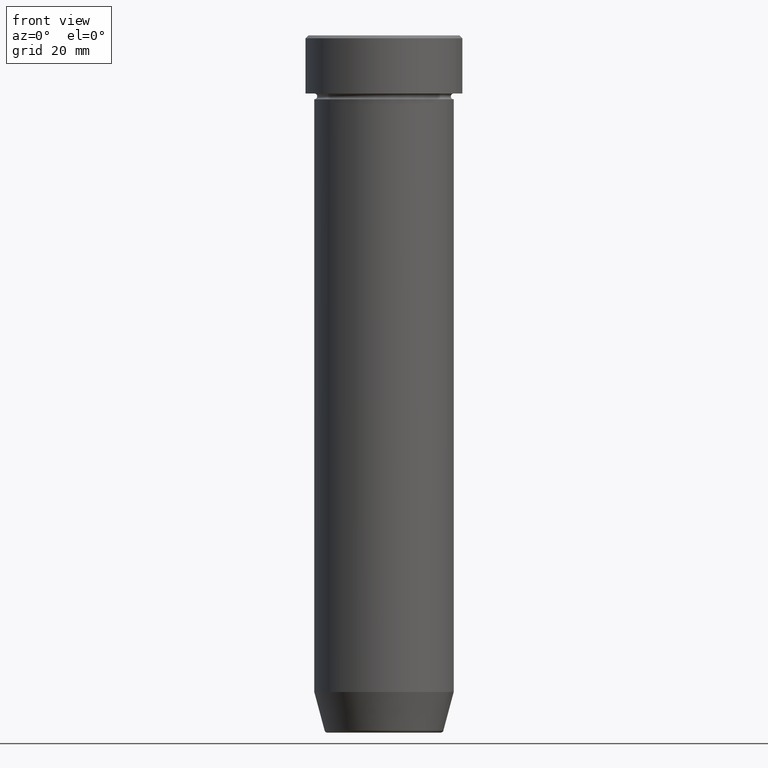
[diagram: clean part render]
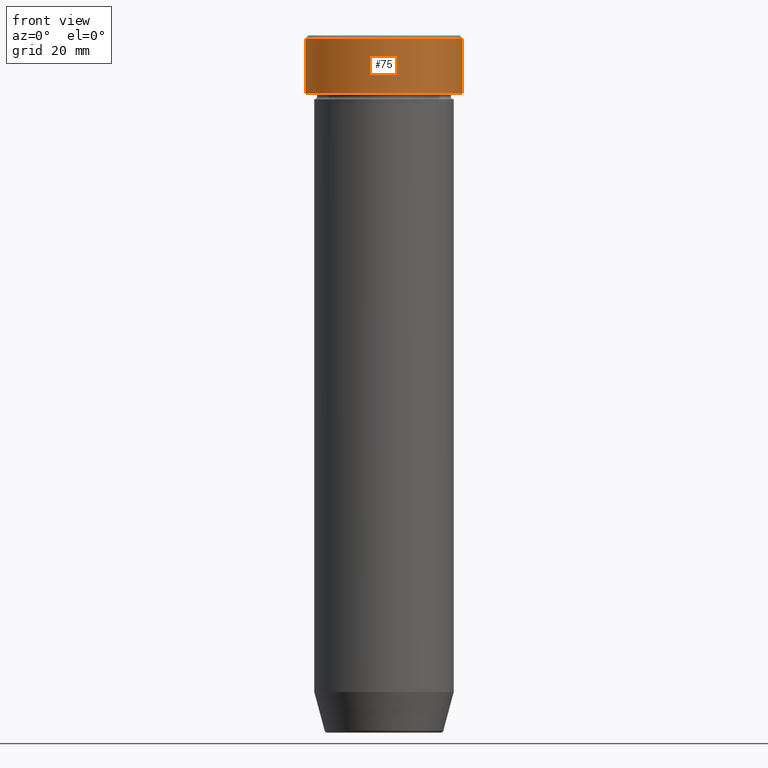
[diagram: same view with one face highlighted and labeled with its STEP entity id]
A machine part, front view. The second image highlights one B-rep face of the part: STEP entity #75.
In plain terms, the highlighted cylindrical surface (partial cylindrical patch) has radius 13.5 mm, axis along (-0, -0, 1).
Its self-contained STEP definition (entity closure, byte-faithful):
#37 = CIRCLE ( 'NONE', #531, 13.50000000000000000 ) ;
#57 = EDGE_CURVE ( 'NONE', #356, #394, #37, .T. ) ;
#60 = VECTOR ( 'NONE', #244, 1000.000000000000000 ) ;
#65 = LINE ( 'NONE', #350, #88 ) ;
#70 = ORIENTED_EDGE ( 'NONE', *, *, #429, .T. ) ;
#71 = CARTESIAN_POINT ( 'NONE',  ( -13.50000000000000000, 1.653273178848926867E-15, -0.5000000000000091038 ) ) ;
#75 = ADVANCED_FACE ( 'NONE', ( #567 ), #374, .T. ) ;
#88 = VECTOR ( 'NONE', #266, 1000.000000000000000 ) ;
#89 = CARTESIAN_POINT ( 'NONE',  ( 0.000000000000000000, 0.000000000000000000, -10.00000000000000000 ) ) ;
#91 = DIRECTION ( 'NONE',  ( -0.000000000000000000, -0.000000000000000000, 1.000000000000000000 ) ) ;
#94 = EDGE_CURVE ( 'NONE', #169, #590, #554, .T. ) ;
#142 = DIRECTION ( 'NONE',  ( 1.000000000000000000, 0.000000000000000000, 0.000000000000000000 ) ) ;
#156 = CARTESIAN_POINT ( 'NONE',  ( -13.50000000000000000, 1.653273178848926867E-15, -10.00000000000000000 ) ) ;
#168 = ORIENTED_EDGE ( 'NONE', *, *, #94, .T. ) ;
#169 = VERTEX_POINT ( 'NONE', #193 ) ;
#193 = CARTESIAN_POINT ( 'NONE',  ( 13.50000000000000000, 0.000000000000000000, -0.5000000000000091038 ) ) ;
#209 = AXIS2_PLACEMENT_3D ( 'NONE', #284, #335, #520 ) ;
#242 = EDGE_CURVE ( 'NONE', #356, #590, #528, .T. ) ;
#243 = CARTESIAN_POINT ( 'NONE',  ( 0.000000000000000000, 0.000000000000000000, -0.5000000000000091038 ) ) ;
#244 = DIRECTION ( 'NONE',  ( -0.000000000000000000, -0.000000000000000000, 1.000000000000000000 ) ) ;
#251 = CARTESIAN_POINT ( 'NONE',  ( -13.50000000000000000, 1.653273178848926867E-15, 0.000000000000000000 ) ) ;
#262 = CARTESIAN_POINT ( 'NONE',  ( 13.50000000000000000, 0.000000000000000000, -10.00000000000000000 ) ) ;
#266 = DIRECTION ( 'NONE',  ( -0.000000000000000000, -0.000000000000000000, 1.000000000000000000 ) ) ;
#284 = CARTESIAN_POINT ( 'NONE',  ( 0.000000000000000000, 0.000000000000000000, 0.000000000000000000 ) ) ;
#285 = DIRECTION ( 'NONE',  ( 1.000000000000000000, 0.000000000000000000, 0.000000000000000000 ) ) ;
#294 = AXIS2_PLACEMENT_3D ( 'NONE', #243, #421, #142 ) ;
#335 = DIRECTION ( 'NONE',  ( -0.000000000000000000, -0.000000000000000000, 1.000000000000000000 ) ) ;
#350 = CARTESIAN_POINT ( 'NONE',  ( 13.50000000000000000, 0.000000000000000000, 0.000000000000000000 ) ) ;
#356 = VERTEX_POINT ( 'NONE', #156 ) ;
#374 = CYLINDRICAL_SURFACE ( 'NONE', #209, 13.50000000000000000 ) ;
#375 = EDGE_LOOP ( 'NONE', ( #459, #390, #70, #168 ) ) ;
#390 = ORIENTED_EDGE ( 'NONE', *, *, #57, .T. ) ;
#394 = VERTEX_POINT ( 'NONE', #262 ) ;
#421 = DIRECTION ( 'NONE',  ( 0.000000000000000000, 0.000000000000000000, -1.000000000000000000 ) ) ;
#429 = EDGE_CURVE ( 'NONE', #394, #169, #65, .T. ) ;
#459 = ORIENTED_EDGE ( 'NONE', *, *, #242, .F. ) ;
#520 = DIRECTION ( 'NONE',  ( 1.000000000000000000, 0.000000000000000000, 0.000000000000000000 ) ) ;
#528 = LINE ( 'NONE', #251, #60 ) ;
#531 = AXIS2_PLACEMENT_3D ( 'NONE', #89, #91, #285 ) ;
#554 = CIRCLE ( 'NONE', #294, 13.50000000000000000 ) ;
#567 = FACE_OUTER_BOUND ( 'NONE', #375, .T. ) ;
#590 = VERTEX_POINT ( 'NONE', #71 ) ;